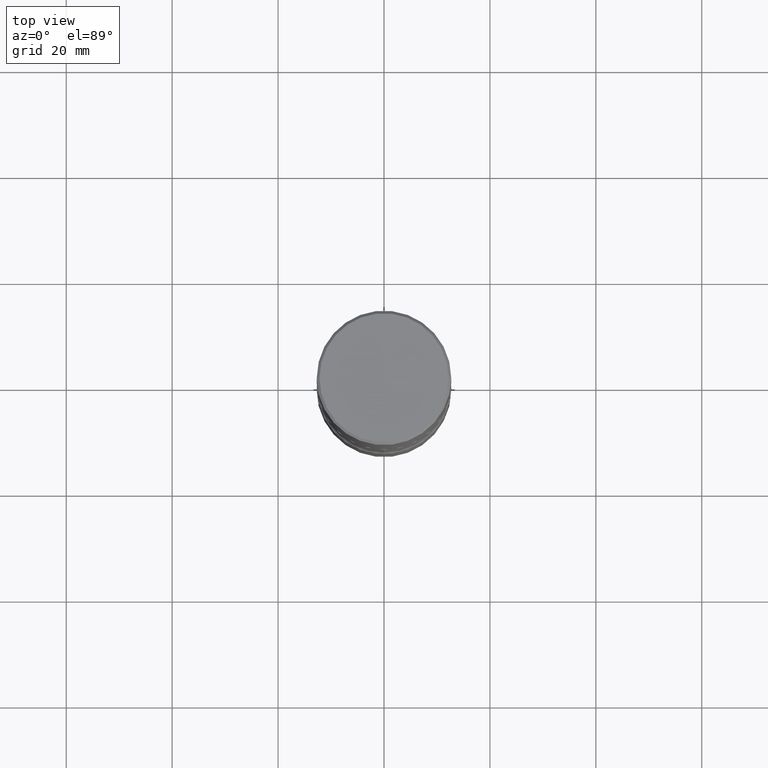
[diagram: clean part render]
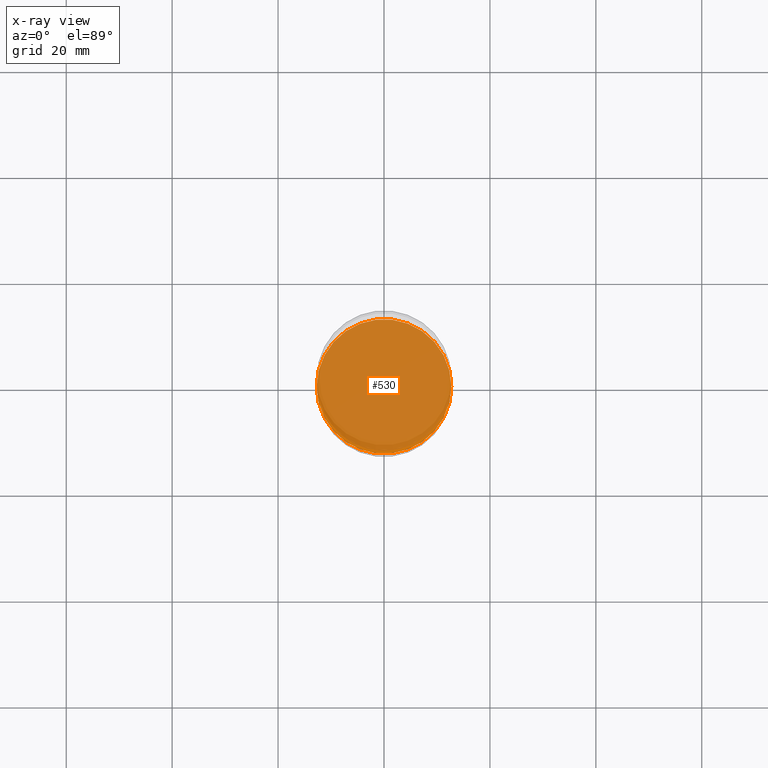
[diagram: x-ray — body ghosted, one internal face saturated and labeled with its STEP entity id]
A machine part, top view, then the same camera in x-ray: the body is ghosted and one INTERNAL B-rep face — a face not visible from any outside direction — is saturated and labeled: STEP entity #530.
In plain terms, the highlighted planar face has unit normal (0, -0, -1).
Its self-contained STEP definition (entity closure, byte-faithful):
#40 = EDGE_CURVE ( 'NONE', #434, #276, #319, .T. ) ;
#49 = AXIS2_PLACEMENT_3D ( 'NONE', #241, #198, #555 ) ;
#67 = EDGE_LOOP ( 'NONE', ( #534, #153 ) ) ;
#86 = AXIS2_PLACEMENT_3D ( 'NONE', #143, #488, #377 ) ;
#143 = CARTESIAN_POINT ( 'NONE',  ( 9.170508023194261117E-29, -1.309305502066179584E-14, -3.749999999999999556 ) ) ;
#153 = ORIENTED_EDGE ( 'NONE', *, *, #482, .T. ) ;
#157 = AXIS2_PLACEMENT_3D ( 'NONE', #226, #406, #188 ) ;
#188 = DIRECTION ( 'NONE',  ( 1.000000000000000000, -6.982962677686268288E-15, 0.000000000000000000 ) ) ;
#198 = DIRECTION ( 'NONE',  ( -2.445468806185136597E-29, 3.491481338843145583E-15, 1.000000000000000000 ) ) ;
#226 = CARTESIAN_POINT ( 'NONE',  ( 9.170508023194261117E-29, -1.309305502066179584E-14, -3.749999999999999556 ) ) ;
#241 = CARTESIAN_POINT ( 'NONE',  ( 9.170508023194261117E-29, -1.309305502066179584E-14, -3.749999999999999556 ) ) ;
#269 = CIRCLE ( 'NONE', #157, 0.5000000000000004441 ) ;
#276 = VERTEX_POINT ( 'NONE', #428 ) ;
#279 = FACE_OUTER_BOUND ( 'NONE', #67, .T. ) ;
#319 = CIRCLE ( 'NONE', #49, 0.5000000000000004441 ) ;
#377 = DIRECTION ( 'NONE',  ( -1.000000000000000000, 6.982962677686265922E-15, -4.876176775795935793E-29 ) ) ;
#406 = DIRECTION ( 'NONE',  ( -2.445468806185136597E-29, 3.491481338843145583E-15, 1.000000000000000000 ) ) ;
#428 = CARTESIAN_POINT ( 'NONE',  ( -0.5000000000000004441, -1.194946346566306450E-14, -3.749999999999999556 ) ) ;
#434 = VERTEX_POINT ( 'NONE', #474 ) ;
#474 = CARTESIAN_POINT ( 'NONE',  ( 0.5000000000000004441, -1.658453635950493392E-14, -3.749999999999999556 ) ) ;
#482 = EDGE_CURVE ( 'NONE', #276, #434, #269, .T. ) ;
#488 = DIRECTION ( 'NONE',  ( 2.438088387897960049E-29, -3.491481338843145188E-15, -1.000000000000000000 ) ) ;
#530 = ADVANCED_FACE ( 'NONE', ( #279 ), #532, .F. ) ;
#532 = PLANE ( 'NONE',  #86 ) ;
#534 = ORIENTED_EDGE ( 'NONE', *, *, #40, .T. ) ;
#555 = DIRECTION ( 'NONE',  ( 1.000000000000000000, -6.982962677686268288E-15, 0.000000000000000000 ) ) ;